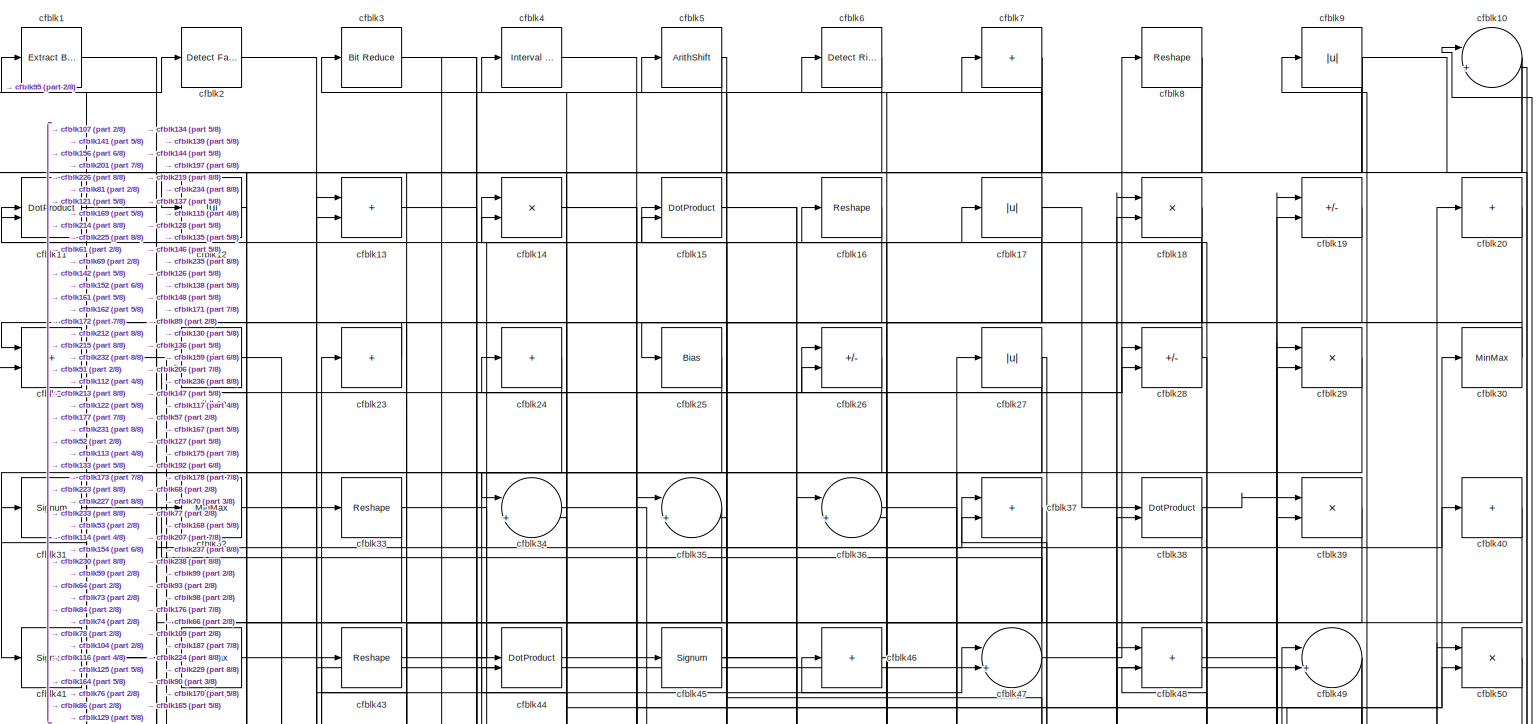
[diagram: root canvas - part 1/8, full width, top band]
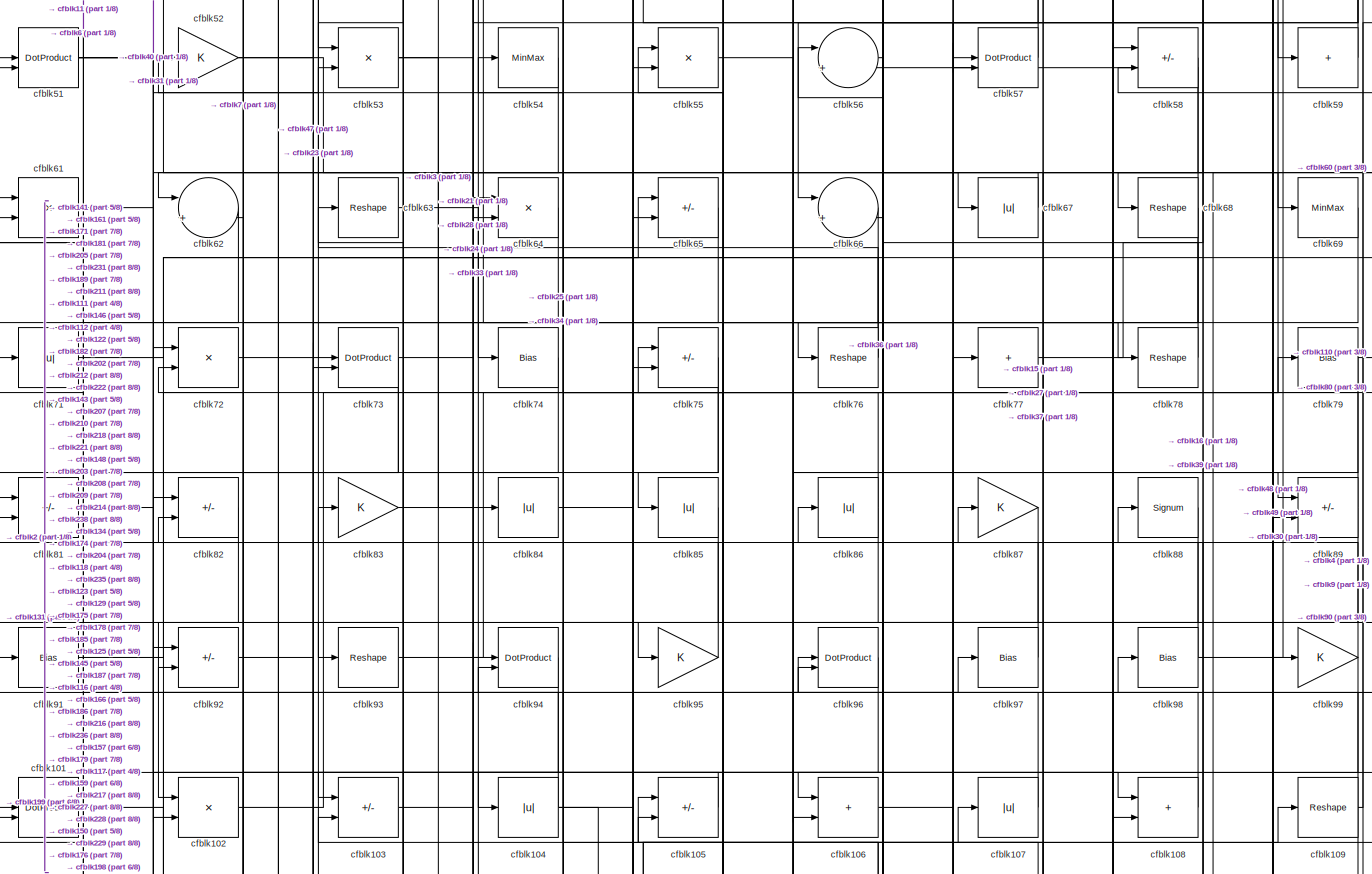
[diagram: root canvas - part 2/8, full width, middle band]
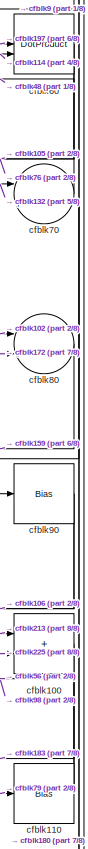
[diagram: root canvas - part 3/8, middle right region]
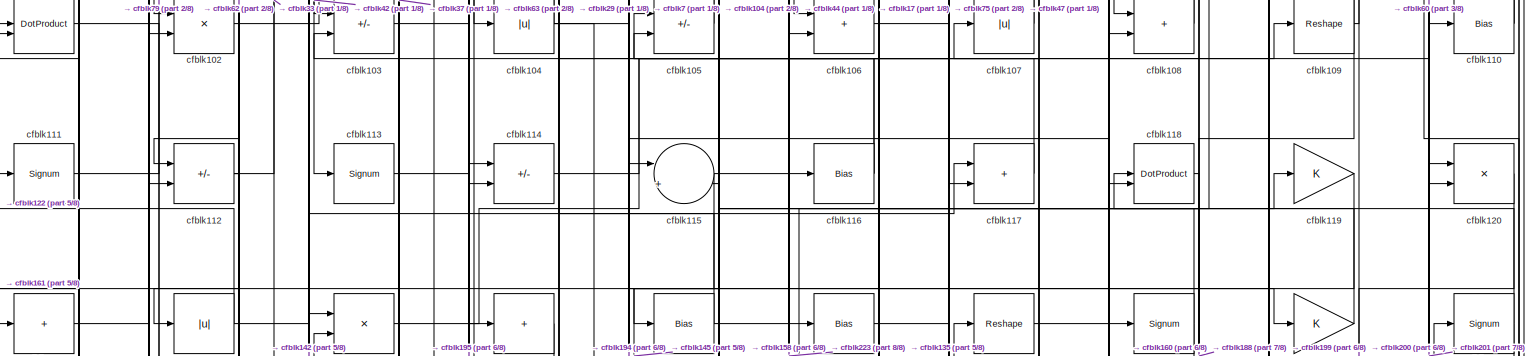
[diagram: root canvas - part 4/8, full width, middle band]
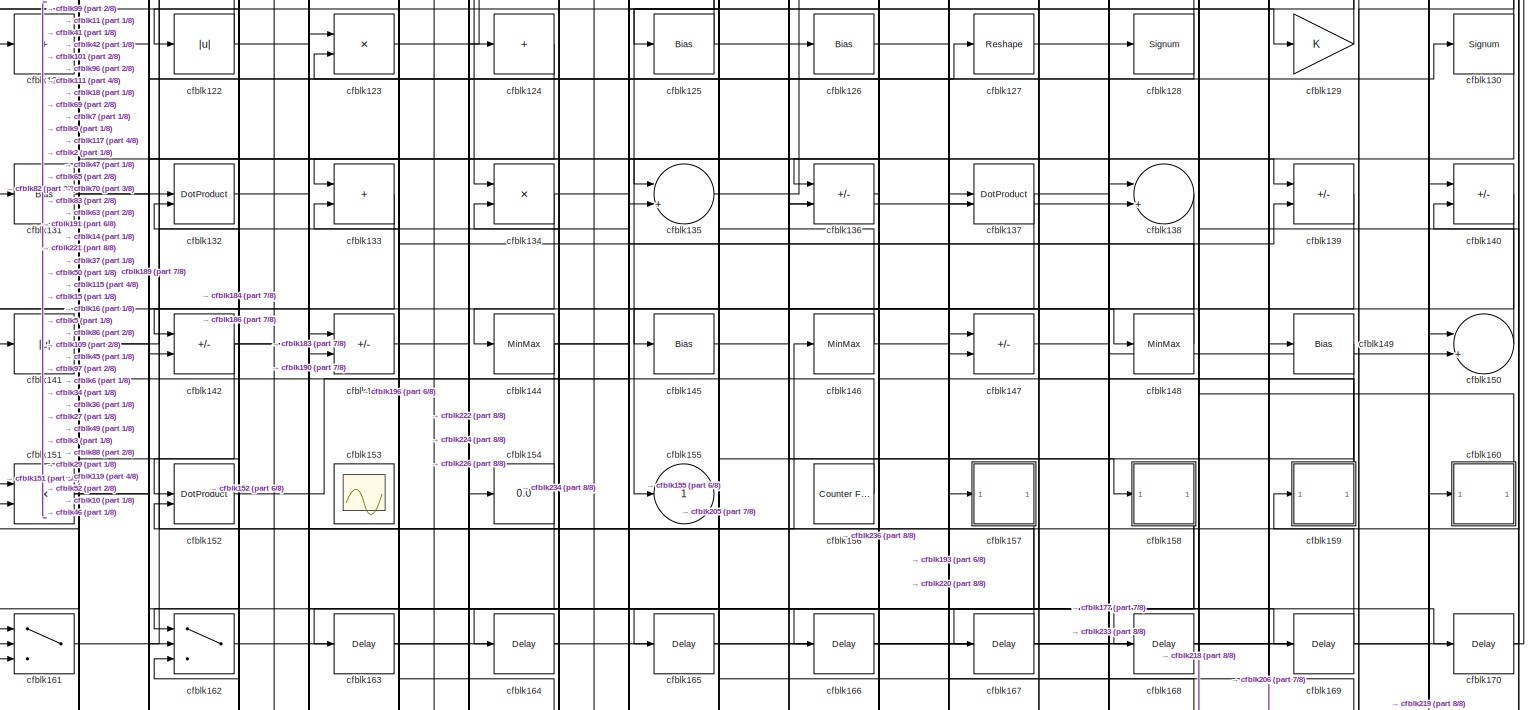
[diagram: root canvas - part 5/8, full width, middle band]
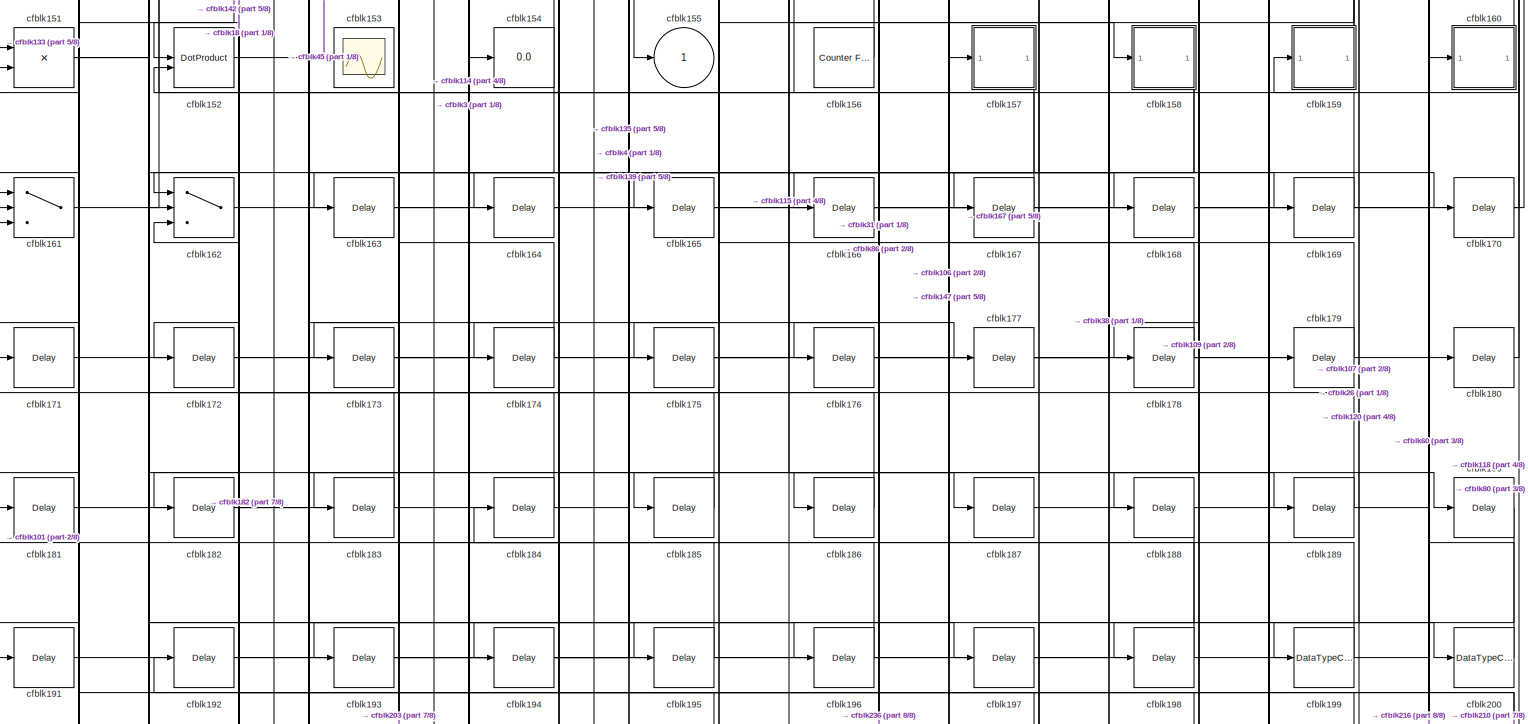
[diagram: root canvas - part 6/8, full width, bottom band]
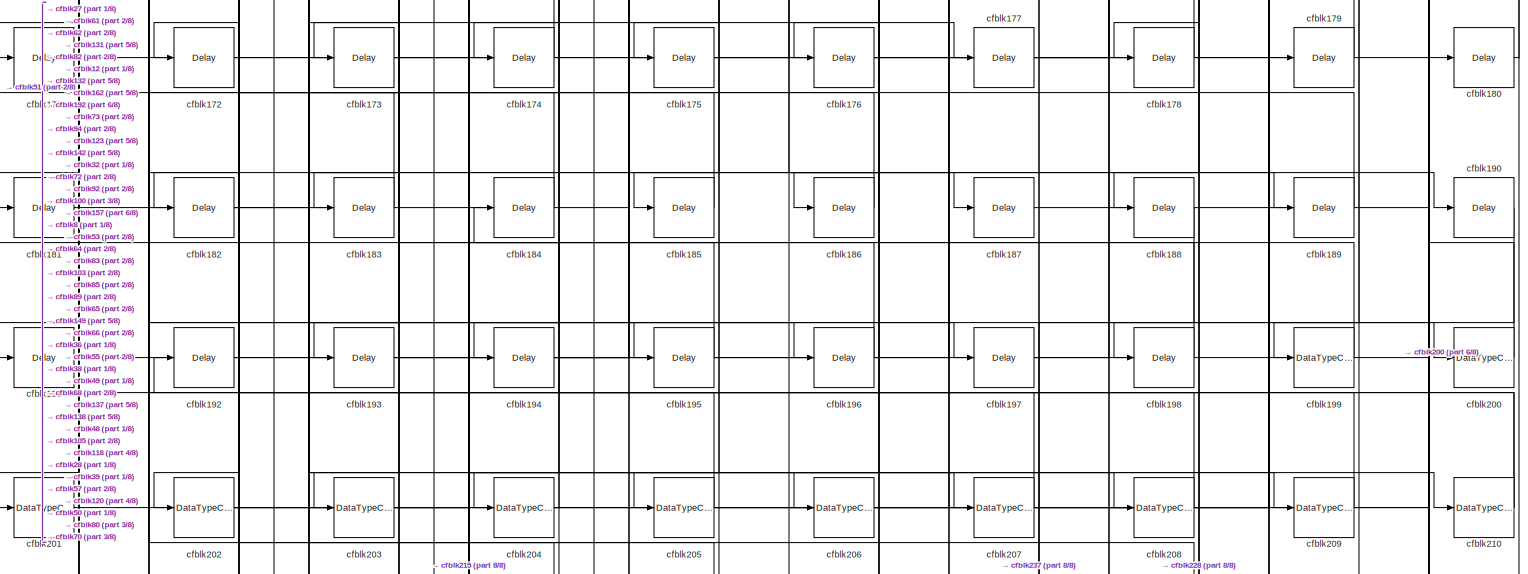
[diagram: root canvas - part 7/8, full width, bottom band]
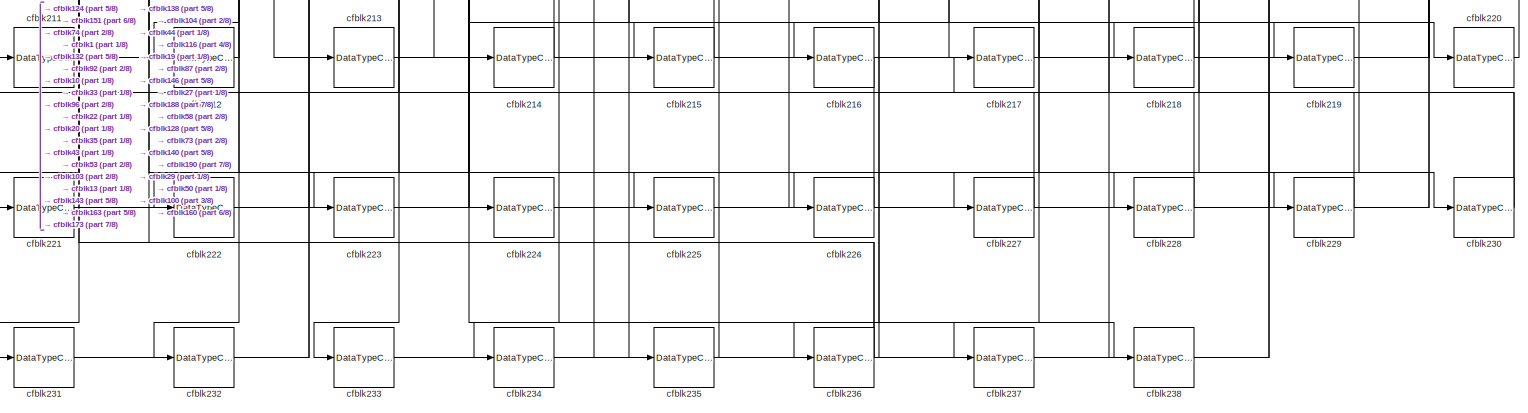
[diagram: root canvas - part 8/8, full width, bottom band]
MODEL slx_63dcc7e4cd52
KIND model
CONFIG AbsTol = auto
CONFIG EnableMultiTasking = off
CONFIG FixedStep = auto
CONFIG MaxStep = auto
CONFIG MinStep = auto
CONFIG RelTol = 1e-3
CONFIG SampleTimeConstraint = Unconstrained
CONFIG SolverName = VariableStepAuto
CONFIG StartTime = 0.0
CONFIG StopTime = 10.0
BLOCK [Reference] cfblk1  REF=simulink/Logic and Bit
Operations/Extract Bits
  LibrarySourceBlock = hdlsllib/Logic and Bit\nOperations/Extract Bits
  SourceBlock = simulink/Logic and Bit\nOperations/Extract Bits
  SourceType = Extract Bits
BLOCK [Sum] cfblk10
  Inputs = |++
BLOCK [Sum] cfblk100
  IconShape = rectangular
BLOCK [DotProduct] cfblk101
  OutDataTypeStr = Inherit: Inherit via internal rule
BLOCK [Product] cfblk102
  Inputs = */
  RndMeth = Zero
  SaturateOnIntegerOverflow = on
BLOCK [Sum] cfblk103
  IconShape = rectangular
  Inputs = +-
BLOCK [Abs] cfblk104
  SaturateOnIntegerOverflow = off
BLOCK [Sum] cfblk105
  IconShape = rectangular
  Inputs = +-
BLOCK [Sum] cfblk106
  IconShape = rectangular
BLOCK [Abs] cfblk107
  SaturateOnIntegerOverflow = off
BLOCK [Sum] cfblk108
  IconShape = rectangular
BLOCK [Reshape] cfblk109
BLOCK [DotProduct] cfblk11
  OutDataTypeStr = Inherit: Inherit via internal rule
BLOCK [Bias] cfblk110
  Bias = 0.0
  SaturateOnIntegerOverflow = off
BLOCK [Signum] cfblk111
BLOCK [Sum] cfblk112
  IconShape = rectangular
  Inputs = +-
BLOCK [Signum] cfblk113
BLOCK [Sum] cfblk114
  IconShape = rectangular
  Inputs = +-
BLOCK [Sum] cfblk115
  Inputs = |++
BLOCK [Bias] cfblk116
  Bias = 0.0
  SaturateOnIntegerOverflow = off
BLOCK [Sum] cfblk117
  IconShape = rectangular
BLOCK [DotProduct] cfblk118
  OutDataTypeStr = Inherit: Inherit via internal rule
BLOCK [Gain] cfblk119
BLOCK [Abs] cfblk12
  SaturateOnIntegerOverflow = off
BLOCK [Product] cfblk120
  Inputs = */
  RndMeth = Zero
  SaturateOnIntegerOverflow = on
BLOCK [Sum] cfblk121
  IconShape = rectangular
  Inputs = +
BLOCK [Abs] cfblk122
  SaturateOnIntegerOverflow = off
BLOCK [Product] cfblk123
  Inputs = */
  RndMeth = Zero
  SaturateOnIntegerOverflow = on
BLOCK [Sum] cfblk124
  IconShape = rectangular
  Inputs = +
BLOCK [Bias] cfblk125
  Bias = 0.0
  SaturateOnIntegerOverflow = off
BLOCK [Bias] cfblk126
  Bias = 0.0
  SaturateOnIntegerOverflow = off
BLOCK [Reshape] cfblk127
BLOCK [Signum] cfblk128
BLOCK [Gain] cfblk129
BLOCK [Sum] cfblk13
  IconShape = rectangular
BLOCK [Signum] cfblk130
BLOCK [Bias] cfblk131
  Bias = 0.0
  SaturateOnIntegerOverflow = off
BLOCK [DotProduct] cfblk132
  OutDataTypeStr = Inherit: Inherit via internal rule
BLOCK [Sum] cfblk133
  IconShape = rectangular
BLOCK [Product] cfblk134
  Inputs = */
  RndMeth = Zero
  SaturateOnIntegerOverflow = on
BLOCK [Sum] cfblk135
  Inputs = |++
BLOCK [Sum] cfblk136
  IconShape = rectangular
  Inputs = +-
BLOCK [DotProduct] cfblk137
  OutDataTypeStr = Inherit: Inherit via internal rule
BLOCK [Sum] cfblk138
  Inputs = |++
BLOCK [Sum] cfblk139
  IconShape = rectangular
  Inputs = +-
BLOCK [Product] cfblk14
  Inputs = */
  RndMeth = Zero
  SaturateOnIntegerOverflow = on
BLOCK [Sum] cfblk140
  IconShape = rectangular
  Inputs = +-
BLOCK [Abs] cfblk141
  SaturateOnIntegerOverflow = off
BLOCK [Sum] cfblk142
  IconShape = rectangular
  Inputs = +-
BLOCK [Sum] cfblk143
  IconShape = rectangular
  Inputs = +-
BLOCK [MinMax] cfblk144
BLOCK [Bias] cfblk145
  Bias = 0.0
  SaturateOnIntegerOverflow = off
BLOCK [MinMax] cfblk146
BLOCK [Sum] cfblk147
  IconShape = rectangular
  Inputs = +-
BLOCK [MinMax] cfblk148
BLOCK [Bias] cfblk149
  Bias = 0.0
  SaturateOnIntegerOverflow = off
BLOCK [DotProduct] cfblk15
  OutDataTypeStr = Inherit: Inherit via internal rule
BLOCK [Sum] cfblk150
  Inputs = |++
BLOCK [Product] cfblk151
  Inputs = */
  RndMeth = Zero
  SaturateOnIntegerOverflow = on
BLOCK [DotProduct] cfblk152
  OutDataTypeStr = Inherit: Inherit via internal rule
BLOCK [Scope] cfblk153
  Floating = on
  NumInputPorts = 1
  ScopeSpecificationString = Simulink.scopes.TimeScopeBlockCfg('CurrentConfiguration', extmgr.ConfigurationSet(extmgr.Configuration('Core','General UI',true,'FigureColor',[0.156862745098039 0.156862745098039 0.156862745098039]),extmgr.Configuration('Core','Source UI',true),extmgr.Configuration('Sources','WiredSimulink',true,'DataLoggingVariableName','ScopeData1','DataLoggingSaveFormat','StructureWithTime','DataLoggingLimitDat...<+2713ch>
BLOCK [Display] cfblk154
  Decimation = 1
BLOCK [Outport] cfblk155
  VectorParamsAs1DForOutWhenUnconnected = off
BLOCK [Reference] cfblk156  REF=hdlsllib/Sources/Counter
Free-Running
  SourceBlock = hdlsllib/Sources/Counter\nFree-Running
  SourceType = Counter Free-Running
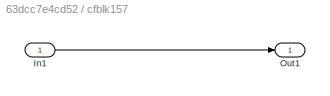
BLOCK [SubSystem] cfblk157
  LibrarySourceBlock = hdlsllib/Ports &\nSubsystems/Subsystem
BLOCK [Inport] cfblk157/In1
BLOCK [Outport] cfblk157/Out1
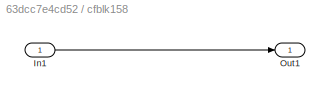
BLOCK [SubSystem] cfblk158
  LibrarySourceBlock = hdlsllib/Ports &\nSubsystems/Subsystem
BLOCK [Inport] cfblk158/In1
BLOCK [Outport] cfblk158/Out1
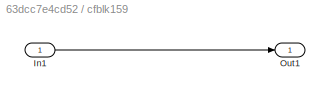
BLOCK [SubSystem] cfblk159
  LibrarySourceBlock = hdlsllib/Ports &\nSubsystems/Subsystem
BLOCK [Inport] cfblk159/In1
BLOCK [Outport] cfblk159/Out1
BLOCK [Reshape] cfblk16
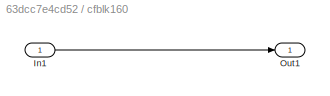
BLOCK [SubSystem] cfblk160
  LibrarySourceBlock = hdlsllib/Ports &\nSubsystems/Subsystem
BLOCK [Inport] cfblk160/In1
BLOCK [Outport] cfblk160/Out1
BLOCK [Switch] cfblk161
  InputSameDT = off
  SaturateOnIntegerOverflow = off
BLOCK [Switch] cfblk162
  InputSameDT = off
  SaturateOnIntegerOverflow = off
BLOCK [Delay] cfblk163
  InputPortMap = u0
  SampleTime = 1
BLOCK [Delay] cfblk164
  InputPortMap = u0
  SampleTime = 1
BLOCK [Delay] cfblk165
  InputPortMap = u0
  SampleTime = 1
BLOCK [Delay] cfblk166
  InputPortMap = u0
  SampleTime = 1
BLOCK [Delay] cfblk167
  InputPortMap = u0
  SampleTime = 1
BLOCK [Delay] cfblk168
  InputPortMap = u0
  SampleTime = 1
BLOCK [Delay] cfblk169
  InputPortMap = u0
  SampleTime = 1
BLOCK [Abs] cfblk17
  SaturateOnIntegerOverflow = off
BLOCK [Delay] cfblk170
  InputPortMap = u0
  SampleTime = 1
BLOCK [Delay] cfblk171
  InputPortMap = u0
  SampleTime = 1
BLOCK [Delay] cfblk172
  InputPortMap = u0
  SampleTime = 1
BLOCK [Delay] cfblk173
  InputPortMap = u0
  SampleTime = 1
BLOCK [Delay] cfblk174
  InputPortMap = u0
  SampleTime = 1
BLOCK [Delay] cfblk175
  InputPortMap = u0
  SampleTime = 1
BLOCK [Delay] cfblk176
  InputPortMap = u0
  SampleTime = 1
BLOCK [Delay] cfblk177
  InputPortMap = u0
  SampleTime = 1
BLOCK [Delay] cfblk178
  InputPortMap = u0
  SampleTime = 1
BLOCK [Delay] cfblk179
  InputPortMap = u0
  SampleTime = 1
BLOCK [Product] cfblk18
  Inputs = */
  RndMeth = Zero
  SaturateOnIntegerOverflow = on
BLOCK [Delay] cfblk180
  InputPortMap = u0
  SampleTime = 1
BLOCK [Delay] cfblk181
  InputPortMap = u0
  SampleTime = 1
BLOCK [Delay] cfblk182
  InputPortMap = u0
  SampleTime = 1
BLOCK [Delay] cfblk183
  InputPortMap = u0
  SampleTime = 1
BLOCK [Delay] cfblk184
  InputPortMap = u0
  SampleTime = 1
BLOCK [Delay] cfblk185
  InputPortMap = u0
  SampleTime = 1
BLOCK [Delay] cfblk186
  InputPortMap = u0
  SampleTime = 1
BLOCK [Delay] cfblk187
  InputPortMap = u0
  SampleTime = 1
BLOCK [Delay] cfblk188
  InputPortMap = u0
  SampleTime = 1
BLOCK [Delay] cfblk189
  InputPortMap = u0
  SampleTime = 1
BLOCK [Sum] cfblk19
  IconShape = rectangular
  Inputs = +-
BLOCK [Delay] cfblk190
  InputPortMap = u0
  SampleTime = 1
BLOCK [Delay] cfblk191
  InputPortMap = u0
  SampleTime = 1
BLOCK [Delay] cfblk192
  InputPortMap = u0
  SampleTime = 1
BLOCK [Delay] cfblk193
  InputPortMap = u0
  SampleTime = 1
BLOCK [Delay] cfblk194
  InputPortMap = u0
  SampleTime = 1
BLOCK [Delay] cfblk195
  InputPortMap = u0
  SampleTime = 1
BLOCK [Delay] cfblk196
  InputPortMap = u0
  SampleTime = 1
BLOCK [Delay] cfblk197
  InputPortMap = u0
  SampleTime = 1
BLOCK [Delay] cfblk198
  InputPortMap = u0
  SampleTime = 1
BLOCK [DataTypeConversion] cfblk199
  OutDataTypeStr = uint8
  RndMeth = Floor
  SaturateOnIntegerOverflow = off
BLOCK [Reference] cfblk2  REF=hdlsllib/Logic and Bit
Operations/Detect Fall
Negative
  SourceBlock = hdlsllib/Logic and Bit\nOperations/Detect Fall\nNegative
  SourceType = Detect Fall Negative
BLOCK [Sum] cfblk20
  IconShape = rectangular
  Inputs = +
BLOCK [DataTypeConversion] cfblk200
  OutDataTypeStr = uint8
  RndMeth = Floor
  SaturateOnIntegerOverflow = off
BLOCK [DataTypeConversion] cfblk201
  OutDataTypeStr = uint8
  RndMeth = Floor
  SaturateOnIntegerOverflow = off
BLOCK [DataTypeConversion] cfblk202
  RndMeth = Floor
  SaturateOnIntegerOverflow = off
BLOCK [DataTypeConversion] cfblk203
  OutDataTypeStr = uint8
  RndMeth = Floor
  SaturateOnIntegerOverflow = off
BLOCK [DataTypeConversion] cfblk204
  OutDataTypeStr = uint8
  RndMeth = Floor
  SaturateOnIntegerOverflow = off
BLOCK [DataTypeConversion] cfblk205
  RndMeth = Floor
  SaturateOnIntegerOverflow = off
BLOCK [DataTypeConversion] cfblk206
  OutDataTypeStr = uint8
  RndMeth = Floor
  SaturateOnIntegerOverflow = off
BLOCK [DataTypeConversion] cfblk207
  RndMeth = Floor
  SaturateOnIntegerOverflow = off
BLOCK [DataTypeConversion] cfblk208
  OutDataTypeStr = uint8
  RndMeth = Floor
  SaturateOnIntegerOverflow = off
BLOCK [DataTypeConversion] cfblk209
  OutDataTypeStr = uint8
  RndMeth = Floor
  SaturateOnIntegerOverflow = off
BLOCK [Sum] cfblk21
  IconShape = rectangular
BLOCK [DataTypeConversion] cfblk210
  RndMeth = Floor
  SaturateOnIntegerOverflow = off
BLOCK [DataTypeConversion] cfblk211
  OutDataTypeStr = uint8
  RndMeth = Floor
  SaturateOnIntegerOverflow = off
BLOCK [DataTypeConversion] cfblk212
  OutDataTypeStr = uint8
  RndMeth = Floor
  SaturateOnIntegerOverflow = off
BLOCK [DataTypeConversion] cfblk213
  RndMeth = Floor
  SaturateOnIntegerOverflow = off
BLOCK [DataTypeConversion] cfblk214
  OutDataTypeStr = uint8
  RndMeth = Floor
  SaturateOnIntegerOverflow = off
BLOCK [DataTypeConversion] cfblk215
  OutDataTypeStr = uint8
  RndMeth = Floor
  SaturateOnIntegerOverflow = off
BLOCK [DataTypeConversion] cfblk216
  RndMeth = Floor
  SaturateOnIntegerOverflow = off
BLOCK [DataTypeConversion] cfblk217
  OutDataTypeStr = uint8
  RndMeth = Floor
  SaturateOnIntegerOverflow = off
BLOCK [DataTypeConversion] cfblk218
  OutDataTypeStr = uint8
  RndMeth = Floor
  SaturateOnIntegerOverflow = off
BLOCK [DataTypeConversion] cfblk219
  OutDataTypeStr = uint8
  RndMeth = Floor
  SaturateOnIntegerOverflow = off
BLOCK [Sum] cfblk22
  IconShape = rectangular
  Inputs = +-
BLOCK [DataTypeConversion] cfblk220
  OutDataTypeStr = uint8
  RndMeth = Floor
  SaturateOnIntegerOverflow = off
BLOCK [DataTypeConversion] cfblk221
  OutDataTypeStr = uint8
  RndMeth = Floor
  SaturateOnIntegerOverflow = off
BLOCK [DataTypeConversion] cfblk222
  OutDataTypeStr = uint8
  RndMeth = Floor
  SaturateOnIntegerOverflow = off
BLOCK [DataTypeConversion] cfblk223
  OutDataTypeStr = uint8
  RndMeth = Floor
  SaturateOnIntegerOverflow = off
BLOCK [DataTypeConversion] cfblk224
  OutDataTypeStr = uint8
  RndMeth = Floor
  SaturateOnIntegerOverflow = off
BLOCK [DataTypeConversion] cfblk225
  RndMeth = Floor
  SaturateOnIntegerOverflow = off
BLOCK [DataTypeConversion] cfblk226
  OutDataTypeStr = uint8
  RndMeth = Floor
  SaturateOnIntegerOverflow = off
BLOCK [DataTypeConversion] cfblk227
  OutDataTypeStr = uint8
  RndMeth = Floor
  SaturateOnIntegerOverflow = off
BLOCK [DataTypeConversion] cfblk228
  OutDataTypeStr = uint8
  RndMeth = Floor
  SaturateOnIntegerOverflow = off
BLOCK [DataTypeConversion] cfblk229
  OutDataTypeStr = uint8
  RndMeth = Floor
  SaturateOnIntegerOverflow = off
BLOCK [Sum] cfblk23
  IconShape = rectangular
  Inputs = +
BLOCK [DataTypeConversion] cfblk230
  RndMeth = Floor
  SaturateOnIntegerOverflow = off
BLOCK [DataTypeConversion] cfblk231
  OutDataTypeStr = uint8
  RndMeth = Floor
  SaturateOnIntegerOverflow = off
BLOCK [DataTypeConversion] cfblk232
  OutDataTypeStr = uint8
  RndMeth = Floor
  SaturateOnIntegerOverflow = off
BLOCK [DataTypeConversion] cfblk233
  OutDataTypeStr = uint8
  RndMeth = Floor
  SaturateOnIntegerOverflow = off
BLOCK [DataTypeConversion] cfblk234
  OutDataTypeStr = uint8
  RndMeth = Floor
  SaturateOnIntegerOverflow = off
BLOCK [DataTypeConversion] cfblk235
  OutDataTypeStr = uint8
  RndMeth = Floor
  SaturateOnIntegerOverflow = off
BLOCK [DataTypeConversion] cfblk236
  RndMeth = Floor
  SaturateOnIntegerOverflow = off
BLOCK [DataTypeConversion] cfblk237
  OutDataTypeStr = uint8
  RndMeth = Floor
  SaturateOnIntegerOverflow = off
BLOCK [DataTypeConversion] cfblk238
  OutDataTypeStr = uint8
  RndMeth = Floor
  SaturateOnIntegerOverflow = off
BLOCK [Sum] cfblk24
  IconShape = rectangular
  Inputs = +
BLOCK [Bias] cfblk25
  Bias = 0.0
  SaturateOnIntegerOverflow = off
BLOCK [Sum] cfblk26
  IconShape = rectangular
  Inputs = +-
BLOCK [Abs] cfblk27
  SaturateOnIntegerOverflow = off
BLOCK [Sum] cfblk28
  IconShape = rectangular
  Inputs = +-
BLOCK [Product] cfblk29
  Inputs = */
  RndMeth = Zero
  SaturateOnIntegerOverflow = on
BLOCK [Reference] cfblk3  REF=hdlsllib/Logic and Bit
Operations/Bit Reduce
  SourceBlock = hdlsllib/Logic and Bit\nOperations/Bit Reduce
  SourceType = Bit Reduce
BLOCK [MinMax] cfblk30
BLOCK [Signum] cfblk31
BLOCK [MinMax] cfblk32
BLOCK [Reshape] cfblk33
BLOCK [Sum] cfblk34
  Inputs = |++
BLOCK [Sum] cfblk35
  Inputs = |++
BLOCK [Sum] cfblk36
  Inputs = |++
BLOCK [Sum] cfblk37
  IconShape = rectangular
BLOCK [DotProduct] cfblk38
  OutDataTypeStr = Inherit: Inherit via internal rule
BLOCK [Product] cfblk39
  Inputs = */
  RndMeth = Zero
  SaturateOnIntegerOverflow = on
BLOCK [Reference] cfblk4  REF=hdlsllib/Logic and Bit
Operations/Interval Test
  SourceBlock = hdlsllib/Logic and Bit\nOperations/Interval Test
  SourceType = Interval Test
BLOCK [Sum] cfblk40
  IconShape = rectangular
  Inputs = +
BLOCK [Signum] cfblk41
BLOCK [MinMax] cfblk42
BLOCK [Reshape] cfblk43
BLOCK [DotProduct] cfblk44
  OutDataTypeStr = Inherit: Inherit via internal rule
BLOCK [Signum] cfblk45
BLOCK [Sum] cfblk46
  IconShape = rectangular
  Inputs = +
BLOCK [Sum] cfblk47
  Inputs = |++
BLOCK [Sum] cfblk48
  IconShape = rectangular
BLOCK [Sum] cfblk49
  Inputs = |++
BLOCK [ArithShift] cfblk5
  BitShiftNumber = 8
  InputPortMap = u0
BLOCK [Product] cfblk50
  Inputs = */
  RndMeth = Zero
  SaturateOnIntegerOverflow = on
BLOCK [DotProduct] cfblk51
  OutDataTypeStr = Inherit: Inherit via internal rule
BLOCK [Gain] cfblk52
BLOCK [Product] cfblk53
  Inputs = */
  RndMeth = Zero
  SaturateOnIntegerOverflow = on
BLOCK [MinMax] cfblk54
BLOCK [Product] cfblk55
  Inputs = */
  RndMeth = Zero
  SaturateOnIntegerOverflow = on
BLOCK [Sum] cfblk56
  Inputs = |++
BLOCK [DotProduct] cfblk57
  OutDataTypeStr = Inherit: Inherit via internal rule
BLOCK [Sum] cfblk58
  IconShape = rectangular
  Inputs = +-
BLOCK [Sum] cfblk59
  IconShape = rectangular
  Inputs = +
BLOCK [Reference] cfblk6  REF=hdlsllib/Logic and Bit
Operations/Detect Rise
Positive
  SourceBlock = hdlsllib/Logic and Bit\nOperations/Detect Rise\nPositive
  SourceType = Detect Rise Positive
BLOCK [DotProduct] cfblk60
  OutDataTypeStr = Inherit: Inherit via internal rule
BLOCK [Product] cfblk61
  Inputs = */
  RndMeth = Zero
  SaturateOnIntegerOverflow = on
BLOCK [Sum] cfblk62
  Inputs = |++
BLOCK [Reshape] cfblk63
BLOCK [Product] cfblk64
  Inputs = */
  RndMeth = Zero
  SaturateOnIntegerOverflow = on
BLOCK [Sum] cfblk65
  IconShape = rectangular
  Inputs = +-
BLOCK [Sum] cfblk66
  Inputs = |++
BLOCK [Abs] cfblk67
  SaturateOnIntegerOverflow = off
BLOCK [Reshape] cfblk68
BLOCK [MinMax] cfblk69
BLOCK [Sum] cfblk7
  IconShape = rectangular
  Inputs = +
BLOCK [Sum] cfblk70
  Inputs = |++
BLOCK [Abs] cfblk71
  SaturateOnIntegerOverflow = off
BLOCK [Product] cfblk72
  Inputs = */
  RndMeth = Zero
  SaturateOnIntegerOverflow = on
BLOCK [DotProduct] cfblk73
  OutDataTypeStr = Inherit: Inherit via internal rule
BLOCK [Bias] cfblk74
  Bias = 0.0
  SaturateOnIntegerOverflow = off
BLOCK [Sum] cfblk75
  IconShape = rectangular
  Inputs = +-
BLOCK [Reshape] cfblk76
BLOCK [Sum] cfblk77
  IconShape = rectangular
  Inputs = +
BLOCK [Reshape] cfblk78
BLOCK [Bias] cfblk79
  Bias = 0.0
  SaturateOnIntegerOverflow = off
BLOCK [Reshape] cfblk8
BLOCK [Sum] cfblk80
  Inputs = |++
BLOCK [Sum] cfblk81
  IconShape = rectangular
  Inputs = +-
BLOCK [Sum] cfblk82
  IconShape = rectangular
  Inputs = +-
BLOCK [Gain] cfblk83
BLOCK [Abs] cfblk84
  SaturateOnIntegerOverflow = off
BLOCK [Abs] cfblk85
  SaturateOnIntegerOverflow = off
BLOCK [Abs] cfblk86
  SaturateOnIntegerOverflow = off
BLOCK [Gain] cfblk87
BLOCK [Signum] cfblk88
BLOCK [Sum] cfblk89
  IconShape = rectangular
  Inputs = +-
BLOCK [Abs] cfblk9
  SaturateOnIntegerOverflow = off
BLOCK [Bias] cfblk90
  Bias = 0.0
  SaturateOnIntegerOverflow = off
BLOCK [Bias] cfblk91
  Bias = 0.0
  SaturateOnIntegerOverflow = off
BLOCK [Sum] cfblk92
  IconShape = rectangular
  Inputs = +-
BLOCK [Reshape] cfblk93
BLOCK [DotProduct] cfblk94
  OutDataTypeStr = Inherit: Inherit via internal rule
BLOCK [Gain] cfblk95
BLOCK [DotProduct] cfblk96
  OutDataTypeStr = Inherit: Inherit via internal rule
BLOCK [Bias] cfblk97
  Bias = 0.0
  SaturateOnIntegerOverflow = off
BLOCK [Bias] cfblk98
  Bias = 0.0
  SaturateOnIntegerOverflow = off
BLOCK [Gain] cfblk99
LINE cfblk100:1 -> cfblk183:1
LINE cfblk101:1 -> cfblk146:1
LINE cfblk102:1 -> cfblk80:1
LINE cfblk103:1 -> cfblk238:1
NET cfblk104:1 -> cfblk118:2, cfblk235:1, cfblk91:1
LINE cfblk105:1 -> cfblk103:1
LINE cfblk106:1 -> cfblk157:1
LINE cfblk107:1 -> cfblk11:1
LINE cfblk108:1 -> cfblk55:1
NET cfblk109:1 -> cfblk198:1, cfblk61:1, cfblk9:1
NET cfblk10:1 -> cfblk121:1, cfblk212:1
NET cfblk110:1 -> cfblk56:1, cfblk98:1
LINE cfblk111:1 -> cfblk79:1
NET cfblk112:1 -> cfblk33:1, cfblk62:2
LINE cfblk113:1 -> cfblk7:1
LINE cfblk114:1 -> cfblk60:2
NET cfblk115:1 -> cfblk158:1, cfblk161:3
NET cfblk116:1 -> cfblk44:2, cfblk63:1
LINE cfblk117:1 -> cfblk75:1
LINE cfblk118:1 -> cfblk188:1
LINE cfblk119:1 -> cfblk145:1
LINE cfblk11:1 -> cfblk169:1
LINE cfblk120:1 -> cfblk199:1
LINE cfblk121:1 -> cfblk42:1
NET cfblk122:1 -> cfblk111:1, cfblk47:2
LINE cfblk123:1 -> cfblk77:1
LINE cfblk124:1 -> cfblk221:1
NET cfblk125:1 -> cfblk109:1, cfblk14:2
LINE cfblk126:1 -> cfblk168:1
LINE cfblk127:1 -> cfblk49:2
NET cfblk128:1 -> cfblk123:2, cfblk3:1
LINE cfblk129:1 -> cfblk52:1
LINE cfblk12:1 -> cfblk172:1
NET cfblk130:1 -> cfblk142:2, cfblk46:1
NET cfblk131:1 -> cfblk130:1, cfblk189:1
LINE cfblk132:1 -> cfblk70:1
LINE cfblk133:1 -> cfblk151:1
NET cfblk134:1 -> cfblk144:1, cfblk26:1
LINE cfblk135:1 -> cfblk119:1
LINE cfblk136:1 -> cfblk6:1
NET cfblk137:1 -> cfblk150:2, cfblk162:2
LINE cfblk138:1 -> cfblk234:1
LINE cfblk139:1 -> cfblk155:1
LINE cfblk13:1 -> cfblk230:1
LINE cfblk140:1 -> cfblk218:1
NET cfblk141:1 -> cfblk101:2, cfblk127:1, cfblk96:1
NET cfblk142:1 -> cfblk117:1, cfblk190:1, cfblk191:1
LINE cfblk143:1 -> cfblk224:1
NET cfblk144:1 -> cfblk139:2, cfblk163:1, cfblk50:2
LINE cfblk145:1 -> cfblk97:1
NET cfblk146:1 -> cfblk15:1, cfblk220:1
LINE cfblk147:1 -> cfblk18:1
LINE cfblk148:1 -> cfblk83:1
LINE cfblk149:1 -> cfblk205:1
NET cfblk14:1 -> cfblk129:1, cfblk139:1
LINE cfblk150:1 -> cfblk88:1
NET cfblk151:1 -> cfblk195:1, cfblk196:1
LINE cfblk152:1 -> cfblk45:1
LINE cfblk156:1 -> cfblk31:1
LINE cfblk157/In1:1 -> cfblk157/Out1:1
LINE cfblk157:1 -> cfblk203:1
LINE cfblk158/In1:1 -> cfblk158/Out1:1
NET cfblk158:1 -> cfblk193:1, cfblk194:1
LINE cfblk159/In1:1 -> cfblk159/Out1:1
NET cfblk159:1 -> cfblk107:1, cfblk26:2
NET cfblk15:1 -> cfblk126:1, cfblk89:1
LINE cfblk160/In1:1 -> cfblk160/Out1:1
LINE cfblk160:1 -> cfblk118:1
LINE cfblk161:1 -> cfblk37:1
LINE cfblk162:1 -> cfblk10:1
LINE cfblk163:1 -> cfblk226:1
LINE cfblk164:1 -> cfblk134:2
LINE cfblk165:1 -> cfblk18:2
LINE cfblk166:1 -> cfblk150:1
LINE cfblk167:1 -> cfblk152:2
LINE cfblk168:1 -> cfblk29:1
LINE cfblk169:1 -> cfblk143:1
LINE cfblk16:1 -> cfblk135:1
LINE cfblk170:1 -> cfblk10:2
LINE cfblk171:1 -> cfblk36:1
LINE cfblk172:1 -> cfblk80:2
LINE cfblk173:1 -> cfblk215:1
LINE cfblk174:1 -> cfblk103:2
LINE cfblk175:1 -> cfblk48:1
LINE cfblk176:1 -> cfblk89:2
LINE cfblk177:1 -> cfblk138:1
LINE cfblk178:1 -> cfblk105:2
LINE cfblk179:1 -> cfblk57:1
NET cfblk17:1 -> cfblk115:2, cfblk34:1, cfblk38:1, cfblk5:1
LINE cfblk180:1 -> cfblk70:2
LINE cfblk181:1 -> cfblk65:2
LINE cfblk182:1 -> cfblk200:1
LINE cfblk183:1 -> cfblk123:1
LINE cfblk184:1 -> cfblk132:2
LINE cfblk185:1 -> cfblk51:1
LINE cfblk186:1 -> cfblk162:3
LINE cfblk187:1 -> cfblk50:1
LINE cfblk188:1 -> cfblk237:1
LINE cfblk189:1 -> cfblk82:1
NET cfblk18:1 -> cfblk141:1, cfblk152:1
LINE cfblk190:1 -> cfblk228:1
LINE cfblk191:1 -> cfblk135:2
LINE cfblk192:1 -> cfblk38:2
LINE cfblk193:1 -> cfblk147:1
LINE cfblk194:1 -> cfblk115:1
LINE cfblk195:1 -> cfblk114:1
LINE cfblk196:1 -> cfblk133:2
LINE cfblk197:1 -> cfblk60:1
LINE cfblk198:1 -> cfblk86:1
LINE cfblk199:1 -> cfblk101:1
LINE cfblk19:1 -> cfblk236:1
LINE cfblk1:1 -> cfblk225:1
LINE cfblk200:1 -> cfblk120:1
LINE cfblk201:1 -> cfblk120:2
NET cfblk202:1 -> cfblk179:1, cfblk180:1, cfblk64:1
LINE cfblk203:1 -> cfblk94:1
LINE cfblk204:1 -> cfblk94:2
NET cfblk205:1 -> cfblk137:1, cfblk61:2
LINE cfblk206:1 -> cfblk149:1
NET cfblk207:1 -> cfblk184:1, cfblk39:2
LINE cfblk208:1 -> cfblk72:1
LINE cfblk209:1 -> cfblk72:2
LINE cfblk20:1 -> cfblk223:1
NET cfblk210:1 -> cfblk192:1, cfblk82:2
LINE cfblk211:1 -> cfblk92:1
LINE cfblk212:1 -> cfblk92:2
NET cfblk213:1 -> cfblk100:1, cfblk27:1
LINE cfblk214:1 -> cfblk22:1
LINE cfblk215:1 -> cfblk22:2
NET cfblk216:1 -> cfblk160:1, cfblk211:1
LINE cfblk217:1 -> cfblk87:1
LINE cfblk218:1 -> cfblk73:1
LINE cfblk219:1 -> cfblk140:1
LINE cfblk21:1 -> cfblk64:2
LINE cfblk220:1 -> cfblk140:2
LINE cfblk221:1 -> cfblk73:2
LINE cfblk222:1 -> cfblk124:1
LINE cfblk223:1 -> cfblk116:1
LINE cfblk224:1 -> cfblk20:1
NET cfblk225:1 -> cfblk100:2, cfblk29:2
LINE cfblk226:1 -> cfblk1:1
LINE cfblk227:1 -> cfblk43:1
LINE cfblk228:1 -> cfblk58:1
LINE cfblk229:1 -> cfblk58:2
LINE cfblk22:1 -> cfblk213:1
NET cfblk230:1 -> cfblk217:1, cfblk44:1
LINE cfblk231:1 -> cfblk13:1
LINE cfblk232:1 -> cfblk13:2
LINE cfblk233:1 -> cfblk128:1
LINE cfblk234:1 -> cfblk35:1
LINE cfblk235:1 -> cfblk35:2
NET cfblk236:1 -> cfblk132:1, cfblk151:2, cfblk96:2
LINE cfblk237:1 -> cfblk19:1
LINE cfblk238:1 -> cfblk19:2
LINE cfblk23:1 -> cfblk21:1
LINE cfblk24:1 -> cfblk74:1
LINE cfblk25:1 -> cfblk104:1
LINE cfblk26:1 -> cfblk41:1
NET cfblk27:1 -> cfblk167:1, cfblk201:1, cfblk57:2
NET cfblk28:1 -> cfblk14:1, cfblk178:1
LINE cfblk29:1 -> cfblk114:2
LINE cfblk2:1 -> cfblk170:1
LINE cfblk30:1 -> cfblk25:1
LINE cfblk31:1 -> cfblk69:1
LINE cfblk32:1 -> cfblk177:1
NET cfblk33:1 -> cfblk232:1, cfblk78:1
LINE cfblk34:1 -> cfblk137:2
LINE cfblk35:1 -> cfblk233:1
LINE cfblk36:1 -> cfblk147:2
NET cfblk37:1 -> cfblk112:2, cfblk133:1
NET cfblk38:1 -> cfblk206:1, cfblk39:1
LINE cfblk39:1 -> cfblk68:1
NET cfblk3:1 -> cfblk154:1, cfblk59:1, cfblk84:1
LINE cfblk40:1 -> cfblk53:1
NET cfblk41:1 -> cfblk136:2, cfblk28:1
LINE cfblk42:1 -> cfblk113:1
LINE cfblk43:1 -> cfblk17:1
LINE cfblk44:1 -> cfblk219:1
NET cfblk45:1 -> cfblk138:2, cfblk148:1
LINE cfblk46:1 -> cfblk136:1
NET cfblk47:1 -> cfblk117:2, cfblk32:1, cfblk8:1
LINE cfblk48:1 -> cfblk99:1
NET cfblk49:1 -> cfblk176:1, cfblk66:1
LINE cfblk4:1 -> cfblk197:1
LINE cfblk50:1 -> cfblk229:1
NET cfblk51:1 -> cfblk108:1, cfblk108:2, cfblk53:2
NET cfblk52:1 -> cfblk47:1, cfblk67:1
NET cfblk53:1 -> cfblk209:1, cfblk214:1
LINE cfblk54:1 -> cfblk102:2
LINE cfblk55:1 -> cfblk187:1
LINE cfblk56:1 -> cfblk66:2
LINE cfblk57:1 -> cfblk15:2
LINE cfblk58:1 -> cfblk227:1
LINE cfblk59:1 -> cfblk4:1
NET cfblk5:1 -> cfblk164:1, cfblk165:1
NET cfblk60:1 -> cfblk105:1, cfblk76:1
LINE cfblk61:1 -> cfblk40:1
LINE cfblk62:1 -> cfblk171:1
LINE cfblk63:1 -> cfblk134:1
LINE cfblk64:1 -> cfblk81:2
LINE cfblk65:1 -> cfblk143:2
LINE cfblk66:1 -> cfblk175:1
LINE cfblk67:1 -> cfblk62:1
NET cfblk68:1 -> cfblk185:1, cfblk186:1, cfblk56:2
LINE cfblk69:1 -> cfblk122:1
LINE cfblk6:1 -> cfblk81:1
LINE cfblk70:1 -> cfblk48:2
LINE cfblk71:1 -> cfblk65:1
LINE cfblk72:1 -> cfblk207:1
NET cfblk73:1 -> cfblk181:1, cfblk182:1, cfblk28:2
LINE cfblk74:1 -> cfblk231:1
NET cfblk75:1 -> cfblk85:1, cfblk93:1
NET cfblk76:1 -> cfblk23:1, cfblk34:2
LINE cfblk77:1 -> cfblk16:1
LINE cfblk78:1 -> cfblk11:2
NET cfblk79:1 -> cfblk106:2, cfblk110:1
NET cfblk7:1 -> cfblk112:1, cfblk142:1, cfblk51:2
LINE cfblk80:1 -> cfblk159:1
LINE cfblk81:1 -> cfblk95:1
LINE cfblk82:1 -> cfblk131:1
LINE cfblk83:1 -> cfblk208:1
LINE cfblk84:1 -> cfblk75:2
LINE cfblk85:1 -> cfblk174:1
NET cfblk86:1 -> cfblk125:1, cfblk24:1
LINE cfblk87:1 -> cfblk216:1
LINE cfblk88:1 -> cfblk166:1
NET cfblk89:1 -> cfblk204:1, cfblk54:1
NET cfblk8:1 -> cfblk12:1, cfblk173:1
NET cfblk90:1 -> cfblk102:1, cfblk106:1
LINE cfblk91:1 -> cfblk55:2
LINE cfblk92:1 -> cfblk210:1
LINE cfblk93:1 -> cfblk49:1
LINE cfblk94:1 -> cfblk202:1
LINE cfblk95:1 -> cfblk2:1
LINE cfblk96:1 -> cfblk222:1
LINE cfblk97:1 -> cfblk71:1
NET cfblk98:1 -> cfblk30:1, cfblk37:2
NET cfblk99:1 -> cfblk161:1, cfblk36:2
NET cfblk9:1 -> cfblk161:2, cfblk162:1, cfblk21:2, cfblk90:1
note: NET lines group one-source signal fan-out (src -> all destinations, sorted); 1:1 wires keep LINE
